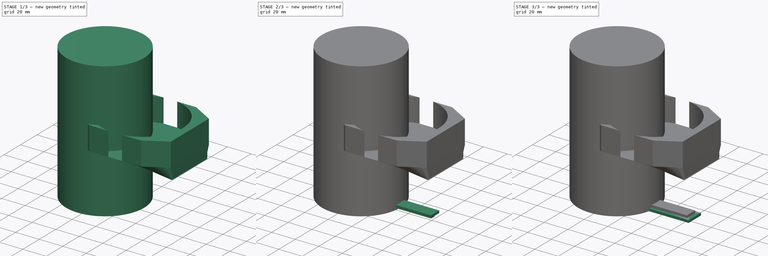
[diagram: build sequence overview — one tinted view per stage of 3, left to right]
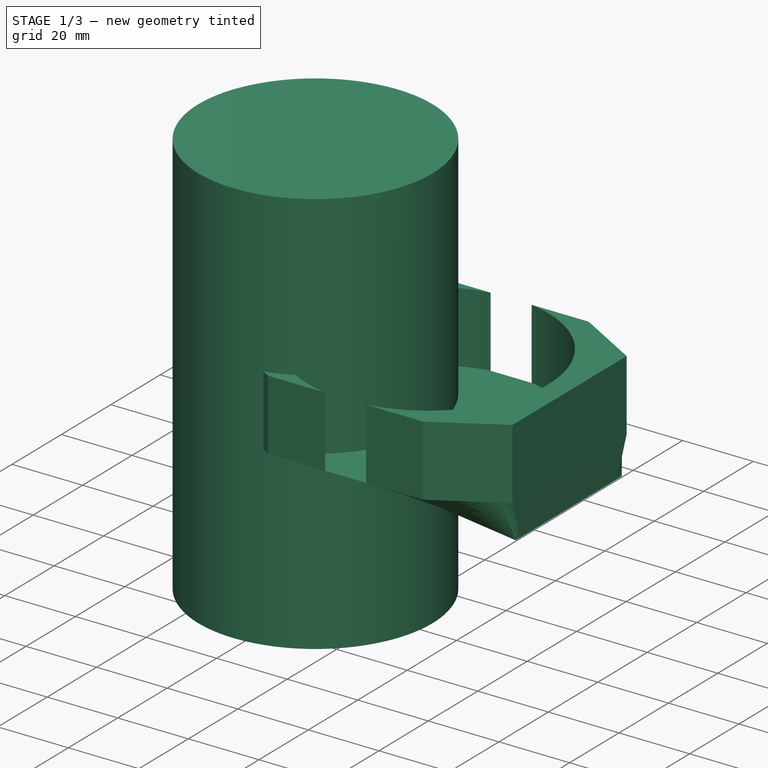
[diagram: stage 1 of 3 — iso view after this stage's code; geometry added in this stage tinted green]
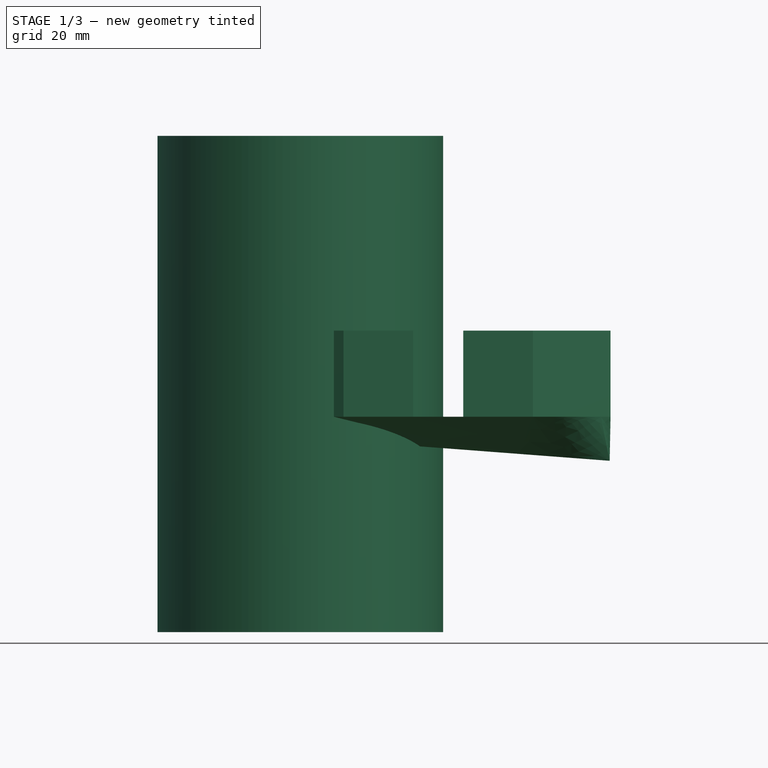
[diagram: stage 1 of 3 — front view after this stage's code; geometry added in this stage tinted green]
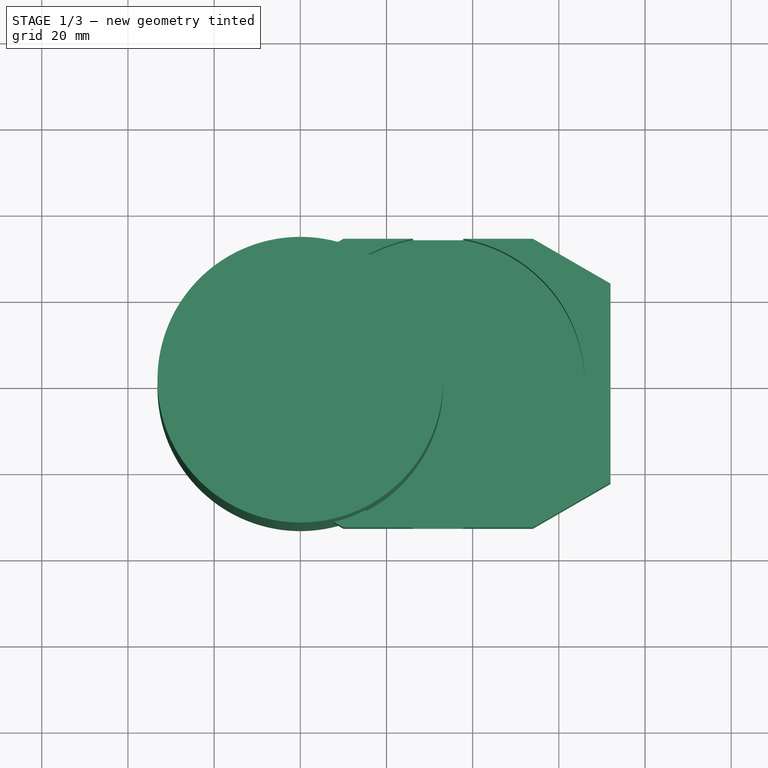
[diagram: stage 1 of 3 — top view after this stage's code; geometry added in this stage tinted green]
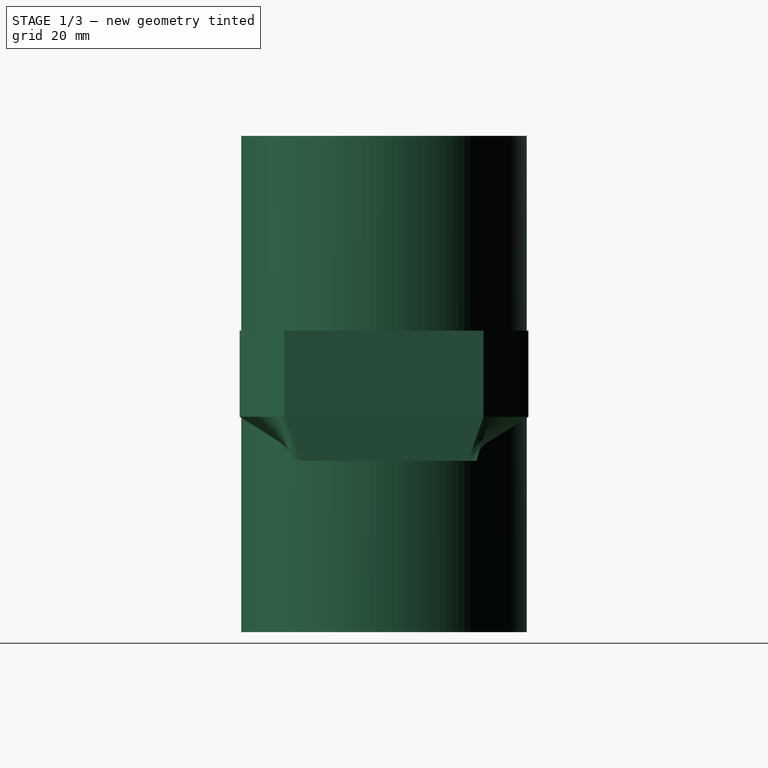
[diagram: stage 1 of 3 — right view after this stage's code; geometry added in this stage tinted green]
FCSTD DOCUMENT  (FreeCAD 0.17R13541 (Git))
Label: beverage_holder
License: All rights reserved
LicenseURL: http://en.wikipedia.org/wiki/All_rights_reserved
objects: Sketcher::SketchObject×9, PartDesign::Plane×6, PartDesign::Pad×4, PartDesign::Body×4, PartDesign::Chamfer×1, Part::Feature×1, PartDesign::Revolution×1, PartDesign::AdditiveLoft×1, PartDesign::Pocket×1
note: 35 computed .brp shape members not serialized (recipe doc carries the construction recipe); baked Part::Feature solids carry a one-line shape summary decoded from their .brp

FEATURE [PartDesign::Body] Body001  label="mounting"
  Group = -> [Sketch001,Pad001,DatumPlane,DatumPlane001,Sketch002,Pad002,DatumPlane002,Sketch003,Pad003]
  Origin = -> Origin001
  Placement = pos=(3,0,43) rot=(0,1,0;0.075747rad)
  Tip = -> Pad003
FEATURE [Part::Feature] Part__Feature  label="upper_body"
  shape: bbox 106 x 67 x 37.7 mm, 69 faces (baked)
FEATURE [PartDesign::Plane] DatumPlane003
  AttachmentOffset = pos=(3,0,45) rot=(0,1,0;0.075747rad)
  MapMode = 5
  Placement = pos=(3,0,45) rot=(0,1,0;0.075747rad)
  Support = -> [XY_Plane002]
FEATURE [Sketcher::SketchObject] Sketch004
  MapMode = 5
  Placement = pos=(3,0,45) rot=(0,1,0;0.075747rad)
  Support = -> [DatumPlane003]
  sketch-geometry (7):
    g0: LineSegment StartX=-3 StartY=16 StartZ=0 EndX=-3 EndY=-16 EndZ=0
    g1: LineSegment [constr] StartX=-3 StartY=-16 StartZ=0 EndX=76 EndY=-22 EndZ=0
    g2: LineSegment [constr] StartX=76 StartY=-22 StartZ=0 EndX=76 EndY=22 EndZ=0
    g3: LineSegment [constr] StartX=76 StartY=22 StartZ=0 EndX=-3 EndY=16 EndZ=0
    g4: LineSegment StartX=-3 StartY=16 StartZ=0 EndX=69 EndY=21.4684 EndZ=0
    g5: LineSegment StartX=-3 StartY=-16 StartZ=0 EndX=69 EndY=-21.4684 EndZ=0
    g6: LineSegment StartX=69 StartY=21.4684 StartZ=0 EndX=69 EndY=-21.4684 EndZ=0
  constraints (20):
    c: Vertical(g0)
    c: Coincident(g0,g1)
    c: Coincident(g1,g2)
    c: Vertical(g2)
    c: Coincident(g2,g3)
    c: Coincident(g3,g0)
    c: Symmetric(g0,g0,g-1)
    c: Symmetric(g2,g1,g-1)
    c: DistanceY(g0,g0) = 32
    c: DistanceX(g0,g1) = 79
    c: DistanceY(g2,g2) = 44
    c: DistanceX(g0,g-1) = 3
    c: Coincident(g4,g0)
    c: PointOnObject(g4,g3)
    c: Coincident(g5,g0)
    c: PointOnObject(g5,g1)
    c: Coincident(g6,g4)
    c: Vertical(g6)
    c: Coincident(g6,g5)
    c: DistanceX(g-1,g5) = 69
FEATURE [PartDesign::Plane] DatumPlane004
  AttachmentOffset = pos=(0,0,50) rot=(0,0,1;0rad)
  MapMode = 5
  Placement = pos=(0,0,50) rot=(0,0,1;0rad)
  Support = -> [XY_Plane002]
FEATURE [Sketcher::SketchObject] Sketch005
  MapMode = 5
  Placement = pos=(0,0,50) rot=(0,0,1;0rad)
  Support = -> [DatumPlane004]
  sketch-geometry (14):
    g0: GeomPoint X=-23 Y=0 Z=0
    g1: LineSegment StartX=-8 StartY=23.094 StartZ=0 EndX=-8 EndY=-23.094 EndZ=0
    g2: LineSegment [constr] StartX=-8 StartY=-23.094 StartZ=0 EndX=32 EndY=-46.188 EndZ=0
    g3: LineSegment [constr] StartX=32 StartY=-46.188 StartZ=0 EndX=72 EndY=-23.094 EndZ=0
    g4: LineSegment StartX=72 StartY=-23.094 StartZ=0 EndX=72 EndY=23.094 EndZ=0
    g5: LineSegment [constr] StartX=72 StartY=23.094 StartZ=0 EndX=32 EndY=46.188 EndZ=0
    g6: LineSegment [constr] StartX=32 StartY=46.188 StartZ=0 EndX=-8 EndY=23.094 EndZ=0
    g7: Circle [constr] CenterX=32 CenterY=0 CenterZ=0 NormalX=0 NormalY=0 NormalZ=1 AngleXU=0 Radius=46.188
    g8: LineSegment StartX=10.0237 StartY=33.5 StartZ=0 EndX=53.9763 EndY=33.5 EndZ=0
    g9: LineSegment StartX=10.0237 StartY=-33.5 StartZ=0 EndX=53.9763 EndY=-33.5 EndZ=0
    g10: LineSegment StartX=10.0237 StartY=33.5 StartZ=0 EndX=-8 EndY=23.094 EndZ=0
    g11: LineSegment StartX=53.9763 StartY=33.5 StartZ=0 EndX=72 EndY=23.094 EndZ=0
    g12: LineSegment StartX=10.0237 StartY=-33.5 StartZ=0 EndX=-8 EndY=-23.094 EndZ=0
    g13: LineSegment StartX=53.9763 StartY=-33.5 StartZ=0 EndX=72 EndY=-23.094 EndZ=0
  constraints (35):
    c: PointOnObject(g0,g-1)
    c: DistanceX(g0,g-1) = 23
    c: Coincident(g1,g2)
    c: Coincident(g2,g3)
    c: Coincident(g3,g4)
    c: Coincident(g4,g5)
    c: Coincident(g5,g6)
    c: Coincident(g6,g1)
    c: Equal(g1, g2-g6) x5
    c: PointOnObject(g1,g7)
    c: PointOnObject(g2,g7)
    c: PointOnObject(g3,g7)
    c: PointOnObject(g4,g7)
    c: PointOnObject(g5,g7)
    c: PointOnObject(g6,g7)
    c: PointOnObject(g7,g-1)
    c: Vertical(g1)
    c: PointOnObject(g8,g6)
    c: PointOnObject(g8,g5)
    c: Horizontal(g8)
    c: PointOnObject(g9,g3)
    c: Horizontal(g9)
    c: PointOnObject(g9,g2)
    c: Coincident(g10,g8)
    c: Coincident(g10,g1)
    c: Coincident(g11,g8)
    c: Coincident(g11,g4)
    c: Coincident(g12,g9)
    c: Coincident(g12,g1)
    c: Coincident(g13,g9)
    c: Coincident(g13,g3)
    c: Equal(g8,g9)
    c: DistanceY(g9,g8) = 67
    c: DistanceX(g1,g3) = 80
    c: DistanceX(g-1,g7) = 32
FEATURE [PartDesign::Plane] DatumPlane005
  AttachmentOffset = pos=(0,0,20) rot=(0,0,1;0rad)
  MapMode = 2
  Placement = pos=(0,0,70) rot=(0,0,1;0rad)
  Support = -> [DatumPlane004]
FEATURE [Sketcher::SketchObject] Sketch006
  MapMode = 5
  Placement = pos=(0,0,0) rot=(1,0,0;1.5708rad)
  Support = -> [XZ_Plane003]
  sketch-geometry (4):
    g0: LineSegment StartX=0 StartY=115.2 StartZ=0 EndX=33.15 EndY=115.2 EndZ=0
    g1: LineSegment StartX=33.15 StartY=115.2 StartZ=0 EndX=33.15 EndY=0 EndZ=0
    g2: LineSegment StartX=33.15 StartY=0 StartZ=0 EndX=0 EndY=0 EndZ=0
    g3: LineSegment StartX=0 StartY=0 StartZ=0 EndX=0 EndY=115.2 EndZ=0
  constraints (12):
    c: Coincident(g0,g1)
    c: Coincident(g1,g2)
    c: Coincident(g2,g3)
    c: Coincident(g3,g0)
    c: Horizontal(g0)
    c: Horizontal(g2)
    c: Vertical(g1)
    c: Vertical(g3)
    c: PointOnObject(g0,g-2)
    c: PointOnObject(g1,g-1)
    c: DistanceX(g2,g2) = 33.15
    c: DistanceY(g1,g1) = 115.2
FEATURE [PartDesign::Revolution] Revolution
  Angle = 360
  Axis = (0,0,1)
  Base = (0,0,0)
  Placement = pos=(0,0,0) rot=(1,0,0;1.5708rad)
  Profile = -> Sketch006
  ReferenceAxis = -> Z_Axis003
  Reversed = true
FEATURE [PartDesign::Body] Body003  label="can"
  Group = -> [Sketch006,Revolution]
  Origin = -> Origin003
  Placement = pos=(32,0,50) rot=(0,0,1;0rad)
  Tip = -> Revolution
FEATURE [Sketcher::SketchObject] Sketch007
  MapMode = 5
  Placement = pos=(0,0,70) rot=(0,0,1;0rad)
  Support = -> [DatumPlane005]
  sketch-geometry (14):
    g0: GeomPoint X=-23 Y=0 Z=0
    g1: LineSegment StartX=-8 StartY=23.094 StartZ=0 EndX=-8 EndY=-23.094 EndZ=0
    g2: LineSegment [constr] StartX=-8 StartY=-23.094 StartZ=0 EndX=32 EndY=-46.188 EndZ=0
    g3: LineSegment [constr] StartX=32 StartY=-46.188 StartZ=0 EndX=72 EndY=-23.094 EndZ=0
    g4: LineSegment StartX=72 StartY=-23.094 StartZ=0 EndX=72 EndY=23.094 EndZ=0
    g5: LineSegment [constr] StartX=72 StartY=23.094 StartZ=0 EndX=32 EndY=46.188 EndZ=0
    g6: LineSegment [constr] StartX=32 StartY=46.188 StartZ=0 EndX=-8 EndY=23.094 EndZ=0
    g7: Circle [constr] CenterX=32 CenterY=0 CenterZ=0 NormalX=0 NormalY=0 NormalZ=1 AngleXU=0 Radius=46.188
    g8: LineSegment StartX=10.0237 StartY=33.5 StartZ=0 EndX=53.9763 EndY=33.5 EndZ=0
    g9: LineSegment StartX=10.0237 StartY=-33.5 StartZ=0 EndX=53.9763 EndY=-33.5 EndZ=0
    g10: LineSegment StartX=10.0237 StartY=33.5 StartZ=0 EndX=-8 EndY=23.094 EndZ=0
    g11: LineSegment StartX=53.9763 StartY=33.5 StartZ=0 EndX=72 EndY=23.094 EndZ=0
    g12: LineSegment StartX=10.0237 StartY=-33.5 StartZ=0 EndX=-8 EndY=-23.094 EndZ=0
    g13: LineSegment StartX=53.9763 StartY=-33.5 StartZ=0 EndX=72 EndY=-23.094 EndZ=0
  constraints (35):
    c: PointOnObject(g0,g-1)
    c: DistanceX(g0,g-1) = 23
    c: Coincident(g1,g2)
    c: Coincident(g2,g3)
    c: Coincident(g3,g4)
    c: Coincident(g4,g5)
    c: Coincident(g5,g6)
    c: Coincident(g6,g1)
    c: Equal(g1, g2-g6) x5
    c: PointOnObject(g1,g7)
    c: PointOnObject(g2,g7)
    c: PointOnObject(g3,g7)
    c: PointOnObject(g4,g7)
    c: PointOnObject(g5,g7)
    c: PointOnObject(g6,g7)
    c: PointOnObject(g7,g-1)
    c: Vertical(g1)
    c: PointOnObject(g8,g6)
    c: PointOnObject(g8,g5)
    c: Horizontal(g8)
    c: PointOnObject(g9,g3)
    c: Horizontal(g9)
    c: PointOnObject(g9,g2)
    c: Coincident(g10,g8)
    c: Coincident(g10,g1)
    c: Coincident(g11,g8)
    c: Coincident(g11,g4)
    c: Coincident(g12,g9)
    c: Coincident(g12,g1)
    c: Coincident(g13,g9)
    c: Coincident(g13,g3)
    c: Equal(g8,g9)
    c: DistanceY(g9,g8) = 67
    c: DistanceX(g1,g3) = 80
    c: DistanceX(g-1,g7) = 32
FEATURE [PartDesign::AdditiveLoft] AdditiveLoft
  Closed = false
  Placement = pos=(3,0,45) rot=(0,1,0;0.075747rad)
  Profile = -> Sketch004
  Ruled = true
  Sections = -> [Sketch005,Sketch007]
FEATURE [Sketcher::SketchObject] Sketch009
  MapMode = 5
  Placement = pos=(0,0,70) rot=(0,0,1;0rad)
  Support = -> [DatumPlane005]
  sketch-geometry (1):
    g0: Circle CenterX=32 CenterY=0 CenterZ=0 NormalX=0 NormalY=0 NormalZ=1 AngleXU=0 Radius=34
  constraints (3):
    c: PointOnObject(g0,g-1)
    c: Radius(g0) = 34
    c: DistanceX(g-1,g0) = 32
FEATURE [PartDesign::Pocket] Pocket
  BaseFeature = -> AdditiveLoft
  Length = 20
  Length2 = 100
  Placement = pos=(3,0,45) rot=(0,1,0;0.075747rad)
  Profile = -> Sketch009
  Type = 0
FEATURE [PartDesign::Body] Body002  label="marker_holder"
  Group = -> [Sketch004,DatumPlane003,DatumPlane004,Sketch005,DatumPlane005,Sketch007,AdditiveLoft,Sketch009,Pocket]
  Origin = -> Origin002
  Tip = -> Pocket
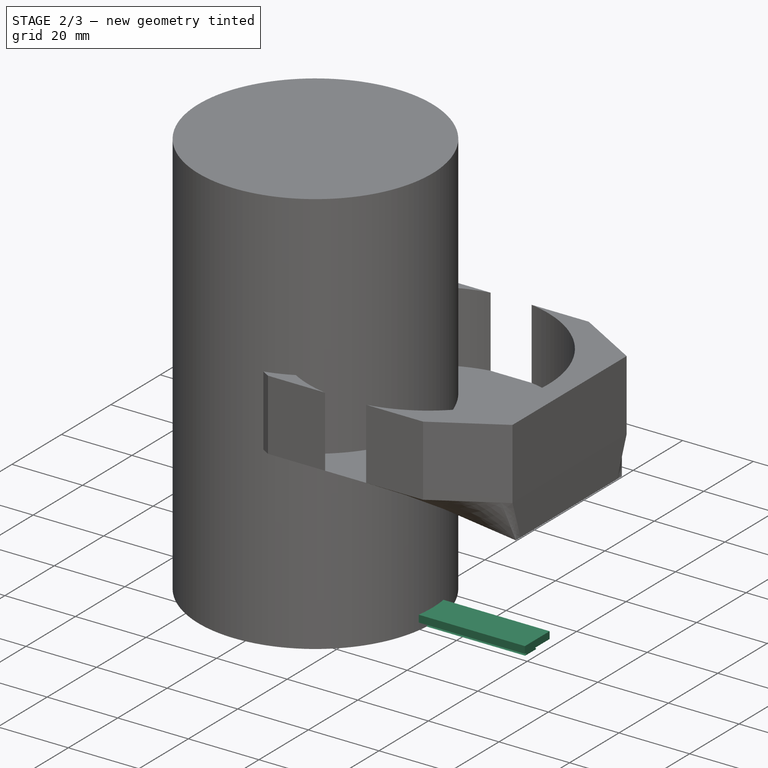
[diagram: stage 2 of 3 — iso view after this stage's code; geometry added in this stage tinted green]
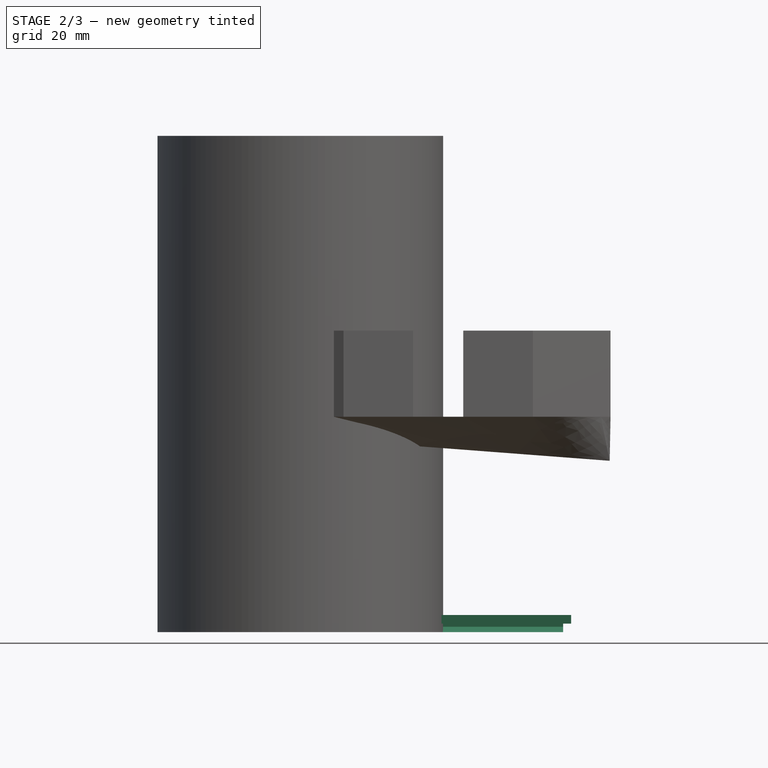
[diagram: stage 2 of 3 — front view after this stage's code; geometry added in this stage tinted green]
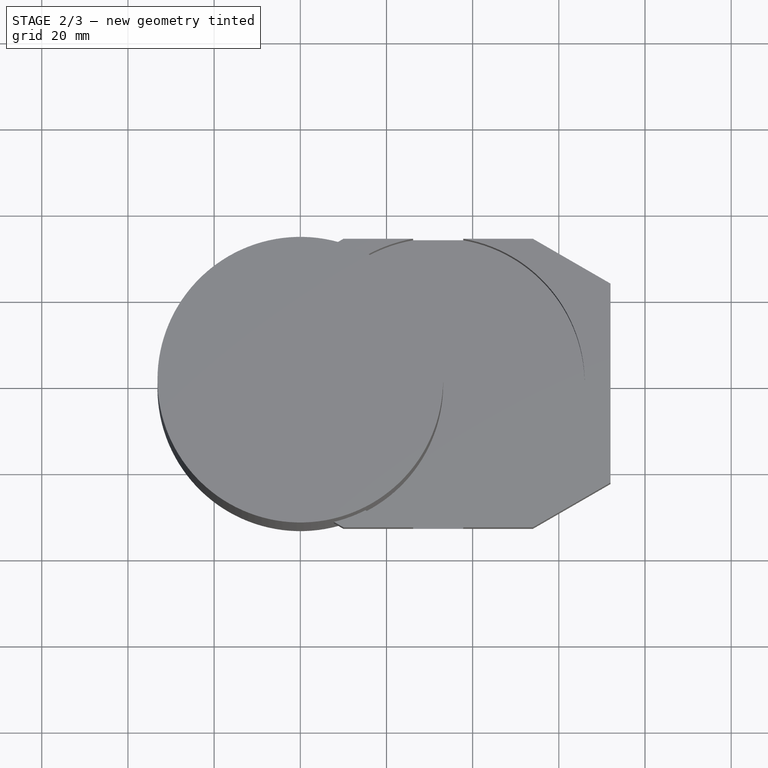
[diagram: stage 2 of 3 — top view after this stage's code; geometry added in this stage tinted green]
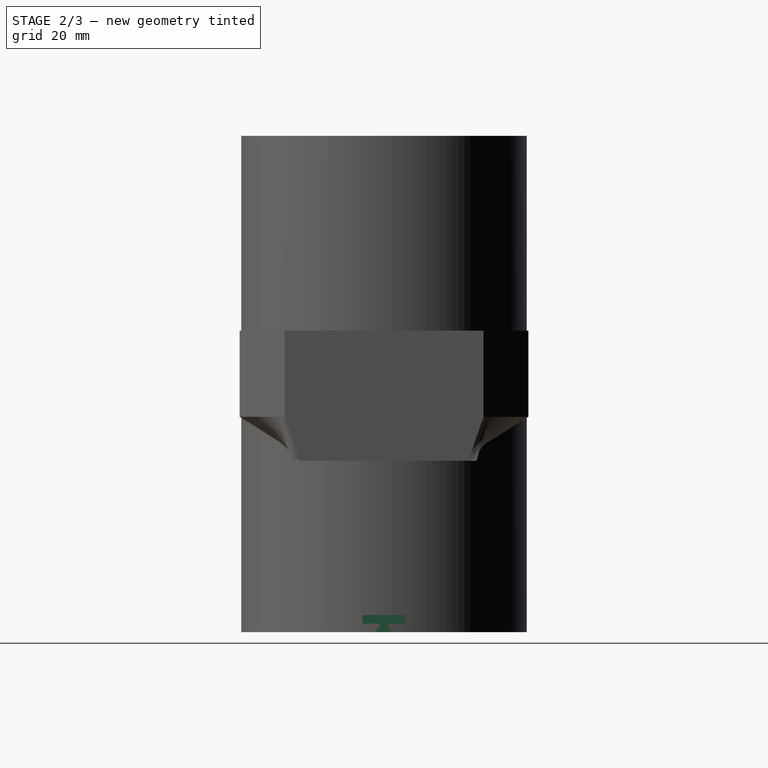
[diagram: stage 2 of 3 — right view after this stage's code; geometry added in this stage tinted green]
FEATURE [PartDesign::Body] Body  label="test_piece"
  Group = -> [Sketch,Pad,Chamfer]
  Origin = -> Origin
  Tip = -> Chamfer
FEATURE [PartDesign::Plane] DatumPlane
  AttachmentOffset = pos=(0,0,31) rot=(0,0,1;0rad)
  MapMode = 5
  Placement = pos=(31,-4e-12,4e-12) rot=(0.57735,0.57735,0.57735;2.0944rad)
  Support = -> [YZ_Plane001]
FEATURE [Sketcher::SketchObject] Sketch001
  MapMode = 5
  Placement = pos=(31,-4e-12,4e-12) rot=(0.57735,0.57735,0.57735;2.0944rad)
  Support = -> [DatumPlane]
  sketch-geometry (6):
    g0: LineSegment StartX=-1 StartY=2 StartZ=0 EndX=1 EndY=2 EndZ=0
    g1: LineSegment StartX=1 StartY=2 StartZ=0 EndX=1 EndY=1.25 EndZ=0
    g2: LineSegment StartX=1 StartY=1.25 StartZ=0 EndX=2.25 EndY=0 EndZ=0
    g3: LineSegment StartX=2.25 StartY=0 StartZ=0 EndX=-2.25 EndY=0 EndZ=0
    g4: LineSegment StartX=-2.25 StartY=0 StartZ=0 EndX=-1 EndY=1.25 EndZ=0
    g5: LineSegment StartX=-1 StartY=1.25 StartZ=0 EndX=-1 EndY=2 EndZ=0
  constraints (18):
    c: Horizontal(g0)
    c: Coincident(g0,g1)
    c: Vertical(g1)
    c: Coincident(g1,g2)
    c: PointOnObject(g2,g-1)
    c: Coincident(g2,g3)
    c: Horizontal(g3)
    c: Coincident(g3,g4)
    c: Coincident(g4,g5)
    c: Coincident(g5,g0)
    c: Vertical(g5)
    c: Symmetric(g0,g0,g-2)
    c: DistanceX(g0,g0) = 2
    c: DistanceY(g2,g0) = 2
    c: Angle(g2,g3) = 0.785398
    c: Symmetric(g4,g1,g-2)
    c: Equal(g4,g2)
    c: DistanceX(g3,g2) = 4.5
FEATURE [PartDesign::Pad] Pad001
  Length = 30
  Length2 = 100
  Placement = pos=(31,0,0) rot=(0.57735,0.57735,0.57735;2.0944rad)
  Profile = -> Sketch001
  Type = 0
FEATURE [PartDesign::Plane] DatumPlane001
  MapMode = 5
  Placement = pos=(31,0,2) rot=(0,0,-1;1.5708rad)
  Support = -> [Pad001]
FEATURE [Sketcher::SketchObject] Sketch002
  MapMode = 5
  Placement = pos=(31,0,2) rot=(0,0,-1;1.5708rad)
  Support = -> [DatumPlane001]
  sketch-geometry (4):
    g0: LineSegment StartX=-5 StartY=31.8482 StartZ=0 EndX=5 EndY=31.8482 EndZ=0
    g1: LineSegment StartX=5 StartY=31.8482 StartZ=0 EndX=5 EndY=-33.1518 EndZ=0
    g2: LineSegment StartX=5 StartY=-33.1518 StartZ=0 EndX=-5 EndY=-33.1518 EndZ=0
    g3: LineSegment StartX=-5 StartY=-33.1518 StartZ=0 EndX=-5 EndY=31.8482 EndZ=0
  constraints (11):
    c: Coincident(g0,g1)
    c: Coincident(g1,g2)
    c: Coincident(g2,g3)
    c: Coincident(g3,g0)
    c: Horizontal(g0)
    c: Horizontal(g2)
    c: Vertical(g1)
    c: Vertical(g3)
    c: Symmetric(g0,g0,g-2)
    c: DistanceY(g1,g0) = 65
    c: DistanceX(g0,g0) = 10
FEATURE [PartDesign::Pad] Pad002
  BaseFeature = -> Pad001
  Length = 2
  Length2 = 100
  Placement = pos=(31,0,0) rot=(0.57735,0.57735,0.57735;2.0944rad)
  Profile = -> Sketch002
  Type = 0
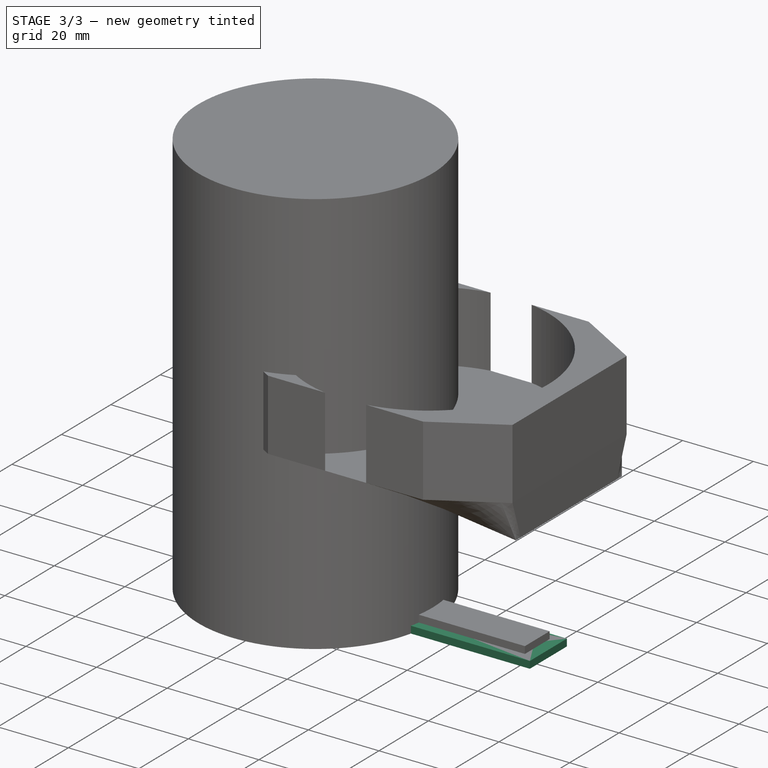
[diagram: stage 3 of 3 — iso view after this stage's code; geometry added in this stage tinted green]
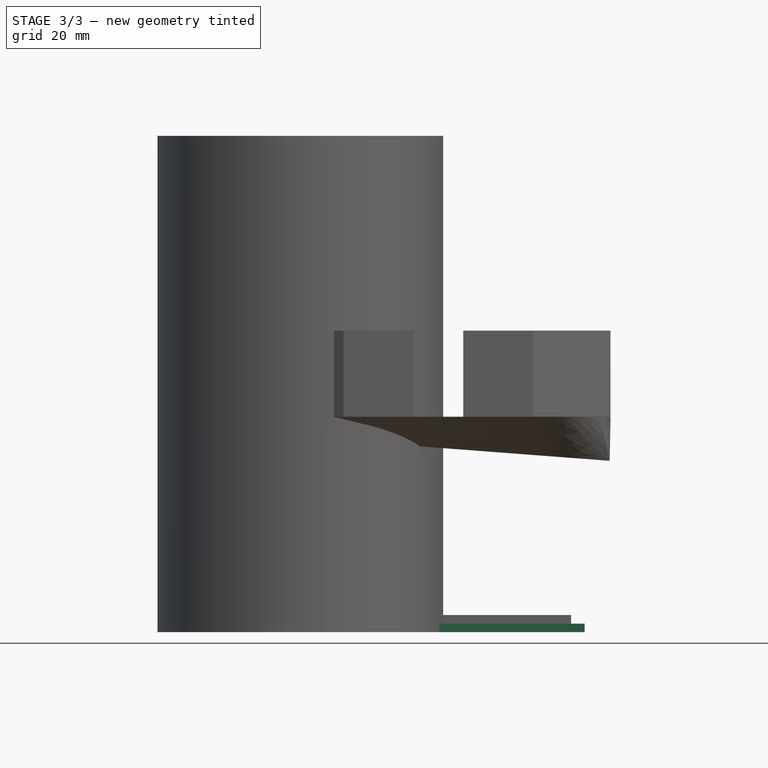
[diagram: stage 3 of 3 — front view after this stage's code; geometry added in this stage tinted green]
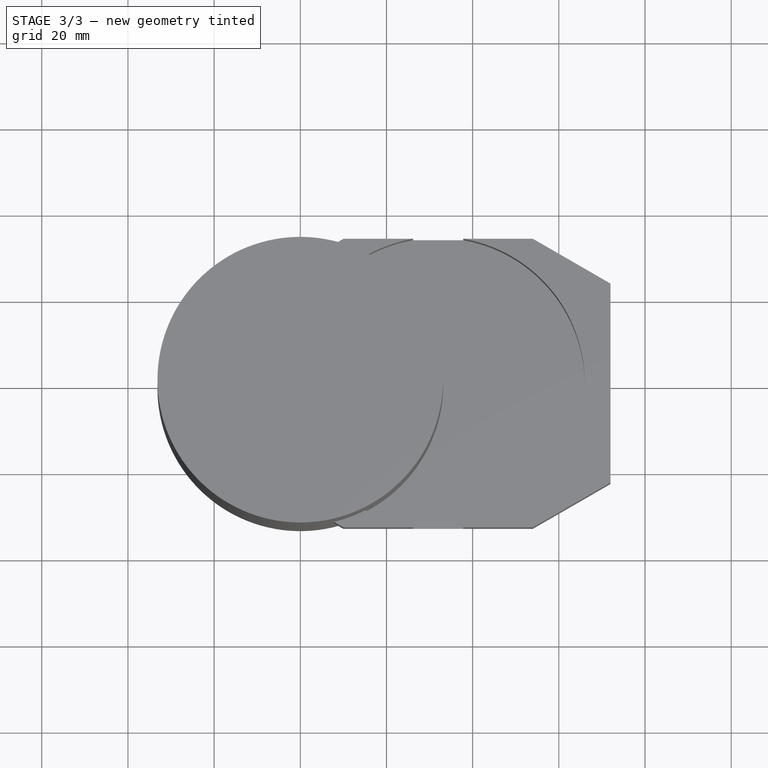
[diagram: stage 3 of 3 — top view after this stage's code; geometry added in this stage tinted green]
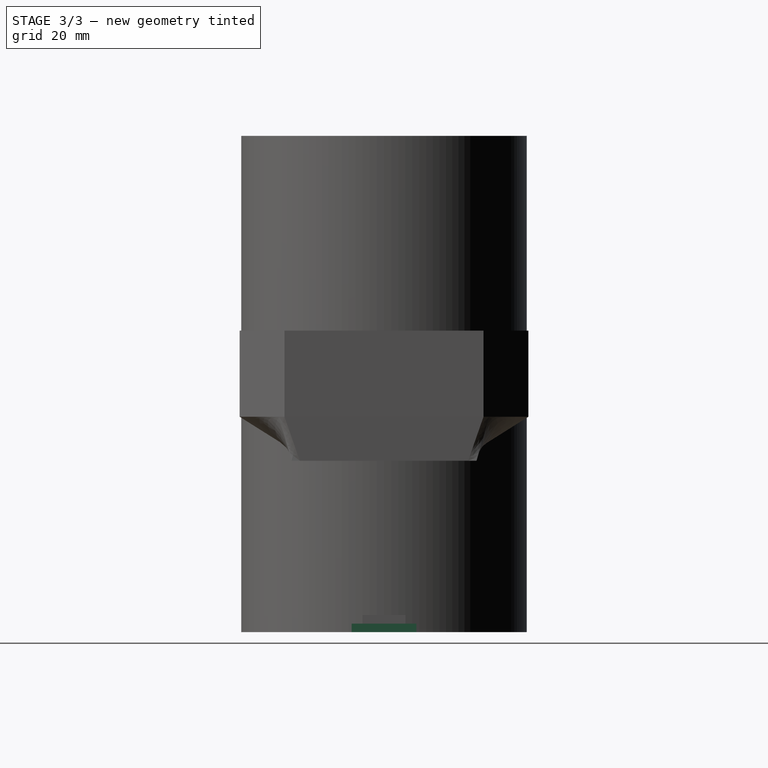
[diagram: stage 3 of 3 — right view after this stage's code; geometry added in this stage tinted green]
FEATURE [Sketcher::SketchObject] Sketch
  MapMode = 5
  Support = -> [XY_Plane]
  sketch-geometry (12):
    g0: LineSegment StartX=0 StartY=2.5 StartZ=0 EndX=30 EndY=2.5 EndZ=0
    g1: LineSegment StartX=30 StartY=2.5 StartZ=0 EndX=31 EndY=1.5 EndZ=0
    g2: LineSegment StartX=30 StartY=-2.5 StartZ=0 EndX=0 EndY=-2.5 EndZ=0
    g3: LineSegment StartX=0 StartY=-2.5 StartZ=0 EndX=0 EndY=2.5 EndZ=0
    g4: LineSegment StartX=31 StartY=1.5 StartZ=0 EndX=61 EndY=1.5 EndZ=0
    g5: LineSegment StartX=61 StartY=1.5 StartZ=0 EndX=61 EndY=-1.5 EndZ=0
    g6: LineSegment StartX=61 StartY=-1.5 StartZ=0 EndX=31 EndY=-1.5 EndZ=0
    g7: LineSegment StartX=31 StartY=-1.5 StartZ=0 EndX=30 EndY=-2.5 EndZ=0
    g8: LineSegment StartX=-5 StartY=7.5 StartZ=0 EndX=66 EndY=7.5 EndZ=0
    g9: LineSegment StartX=66 StartY=7.5 StartZ=0 EndX=66 EndY=-7.5 EndZ=0
    g10: LineSegment StartX=66 StartY=-7.5 StartZ=0 EndX=-5 EndY=-7.5 EndZ=0
    g11: LineSegment StartX=-5 StartY=-7.5 StartZ=0 EndX=-5 EndY=7.5 EndZ=0
  constraints (35):
    c: Coincident(g0,g1)
    c: Coincident(g2,g3)
    c: Coincident(g3,g0)
    c: Horizontal(g0)
    c: Horizontal(g2)
    c: Vertical(g3)
    c: PointOnObject(g0,g-2)
    c: Coincident(g4,g5)
    c: Coincident(g5,g6)
    c: Coincident(g6,g7)
    c: Horizontal(g4)
    c: Horizontal(g6)
    c: Vertical(g5)
    c: Coincident(g2,g7)
    c: Coincident(g1,g4)
    c: Symmetric(g4,g5,g-1)
    c: Symmetric(g0,g2,g-1)
    c: DistanceX(g0,g0) = 30
    c: Equal(g7,g1)
    c: DistanceY(g3,g3) = 5
    c: DistanceY(g5,g5) = 3
    c: Equal(g4,g0)
    c: Angle(g4,g1) = 2.35619
    c: Coincident(g8,g9)
    c: Coincident(g9,g10)
    c: Coincident(g10,g11)
    c: Coincident(g11,g8)
    c: Horizontal(g8)
    c: Horizontal(g10)
    c: Vertical(g9)
    c: Vertical(g11)
    c: Symmetric(g9,g8,g-1)
    c: DistanceX(g5,g9) = 5
    c: DistanceX(g10,g2) = 5
    c: DistanceY(g10,g2) = 5
FEATURE [PartDesign::Pad] Pad
  Length = 2
  Length2 = 100
  Profile = -> Sketch
  Type = 0
FEATURE [PartDesign::Chamfer] Chamfer
  Base = -> Pad [Edge24,Edge30]
  BaseFeature = -> Pad
  Size = 1
FEATURE [PartDesign::Plane] DatumPlane002
  MapMode = 5
  Placement = pos=(0,0,0) rot=(1,0,0;1.5708rad)
  Support = -> [XZ_Plane001]
FEATURE [Sketcher::SketchObject] Sketch003
  MapMode = 5
  Placement = pos=(0,0,0) rot=(1,0,0;1.5708rad)
  Support = -> [DatumPlane002]
  sketch-geometry (4):
    g0: LineSegment StartX=1 StartY=2 StartZ=0 EndX=1 EndY=0 EndZ=0
    g1: LineSegment StartX=1 StartY=0 StartZ=0 EndX=2 EndY=0 EndZ=0
    g2: LineSegment StartX=2 StartY=0 StartZ=0 EndX=5.4641 EndY=2 EndZ=0
    g3: LineSegment StartX=5.4641 StartY=2 StartZ=0 EndX=1 EndY=2 EndZ=0
  constraints (12):
    c: Vertical(g0)
    c: Coincident(g0,g1)
    c: Horizontal(g1)
    c: Coincident(g1,g2)
    c: Coincident(g2,g3)
    c: Coincident(g3,g0)
    c: Horizontal(g3)
    c: DistanceY(g-1,g0) = 2
    c: DistanceY(g0,g0) = 2
    c: Angle(g3,g2) = 0.523599
    c: DistanceX(g1,g1) = 1
    c: DistanceX(g-1,g0) = 1
FEATURE [PartDesign::Pad] Pad003
  BaseFeature = -> Pad002
  Length = 4.5
  Length2 = 100
  Midplane = true
  Placement = pos=(31,0,0) rot=(0.57735,0.57735,0.57735;2.0944rad)
  Profile = -> Sketch003
  Type = 0
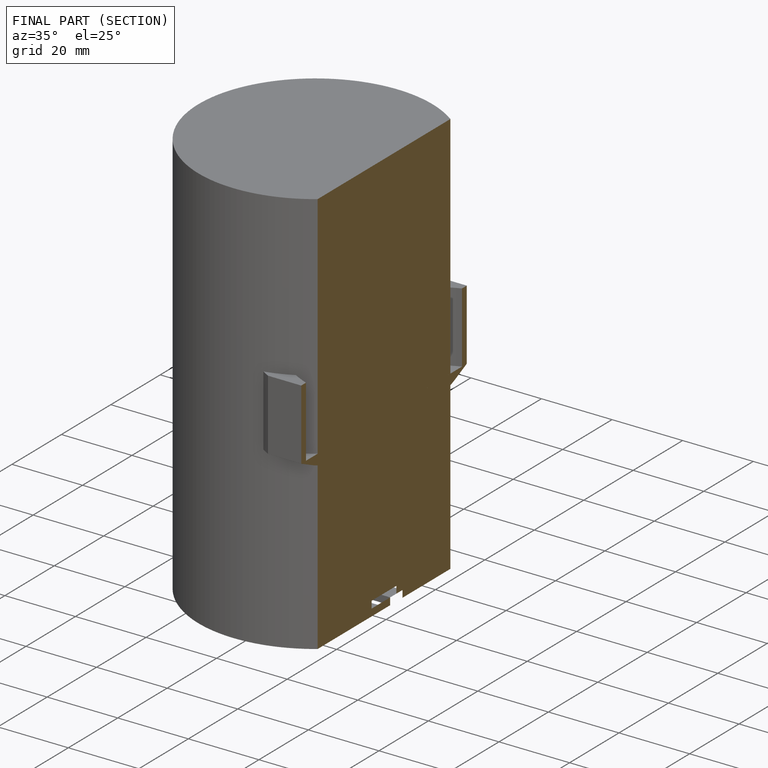
[diagram: finished part — half-section view (interior)]
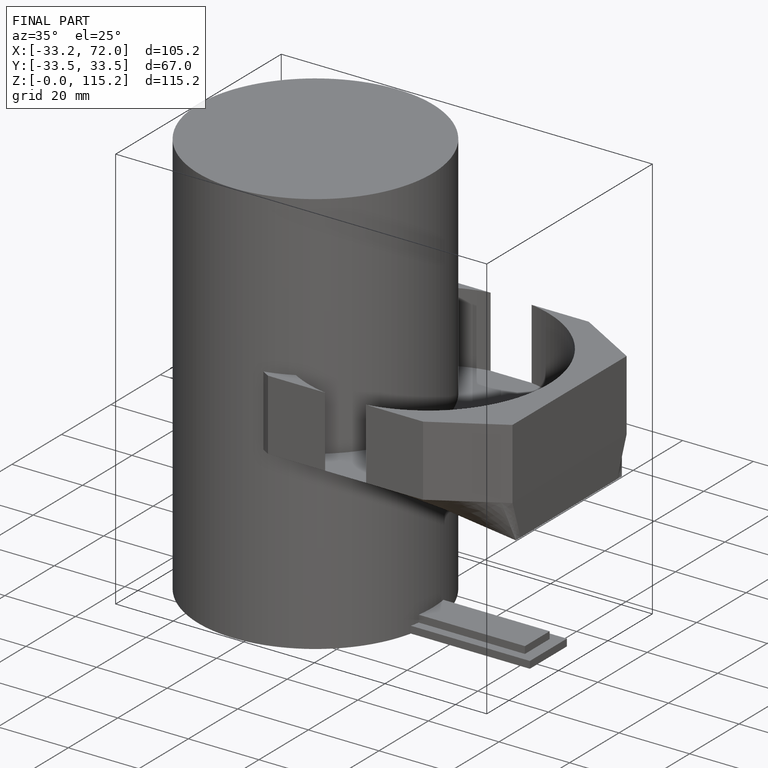
[diagram: finished part — iso view with bounding-box wireframe]
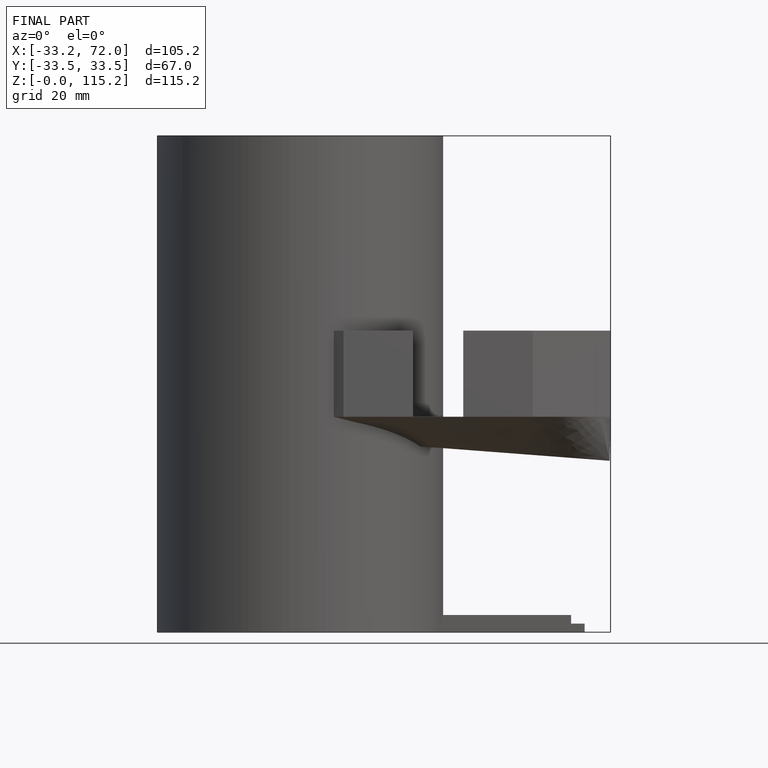
[diagram: finished part — front view with bounding-box wireframe]
